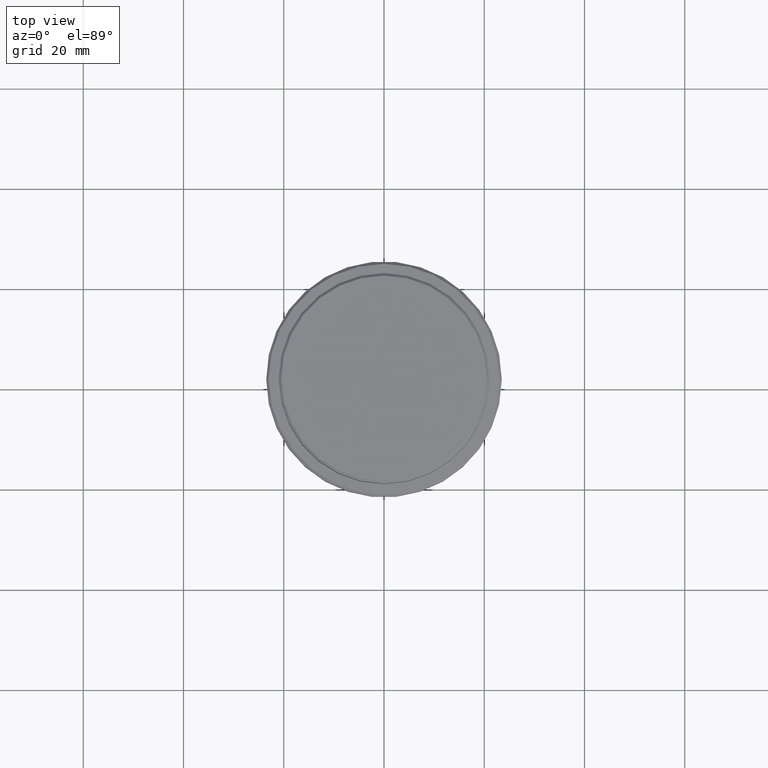
[diagram: clean part render]
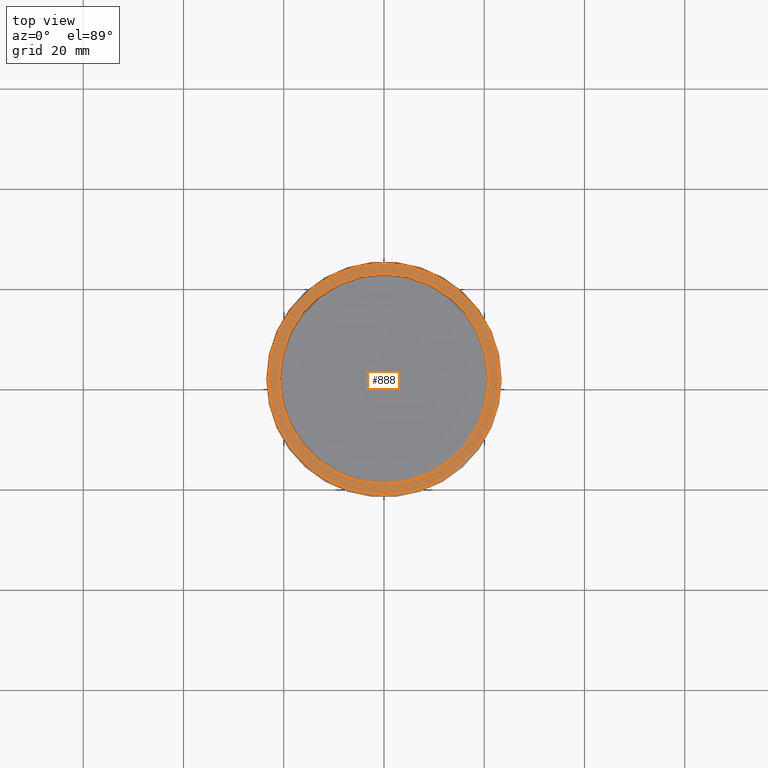
[diagram: same view with one face highlighted and labeled with its STEP entity id]
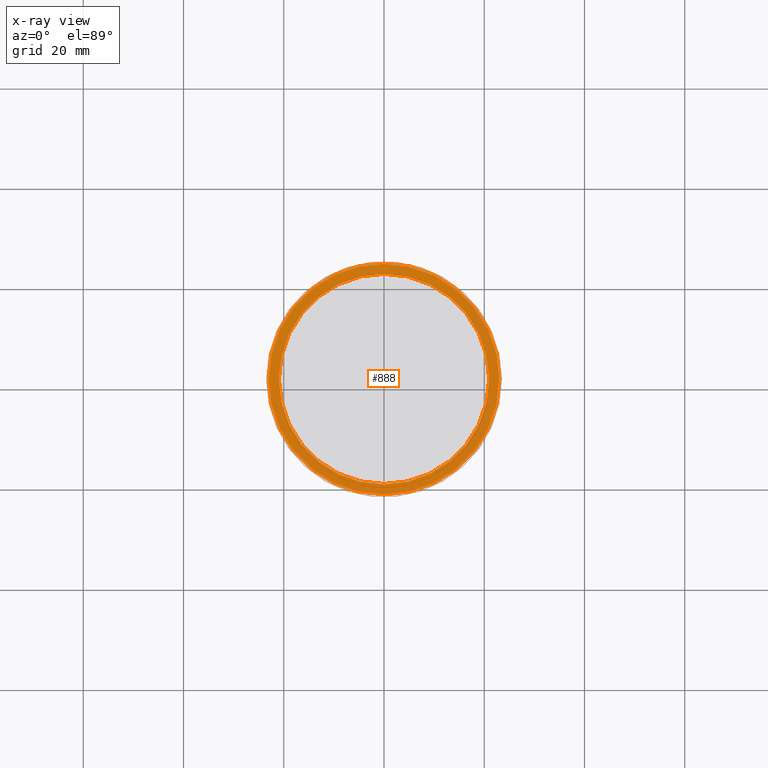
[diagram: x-ray of the same camera — body ghosted, the highlighted face saturated]
A machine part, top view. The second image highlights one B-rep face of the part: STEP entity #888.
The next image is the same camera in x-ray: the body ghosted, the highlighted face saturated — about 0% of this face is hidden behind the body in this view.
In plain terms, the highlighted planar face has unit normal (0, -0, 1).
Its self-contained STEP definition (entity closure, byte-faithful):
#24 = FACE_OUTER_BOUND ( 'NONE', #1284, .T. ) ;
#48 = VERTEX_POINT ( 'NONE', #637 ) ;
#64 = DIRECTION ( 'NONE',  ( 0.000000000000000000, 0.000000000000000000, -1.000000000000000000 ) ) ;
#76 = DIRECTION ( 'NONE',  ( 1.000000000000000000, 0.000000000000000000, 0.000000000000000000 ) ) ;
#112 = CARTESIAN_POINT ( 'NONE',  ( 20.99999999999999289, 0.000000000000000000, -9.000000000000001776 ) ) ;
#142 = PLANE ( 'NONE',  #298 ) ;
#163 = ORIENTED_EDGE ( 'NONE', *, *, #831, .T. ) ;
#165 = CARTESIAN_POINT ( 'NONE',  ( 0.000000000000000000, 0.000000000000000000, -9.000000000000001776 ) ) ;
#216 = DIRECTION ( 'NONE',  ( 1.000000000000000000, 0.000000000000000000, 0.000000000000000000 ) ) ;
#218 = CARTESIAN_POINT ( 'NONE',  ( 0.000000000000000000, 0.000000000000000000, -9.000000000000001776 ) ) ;
#271 = EDGE_CURVE ( 'NONE', #670, #830, #501, .T. ) ;
#298 = AXIS2_PLACEMENT_3D ( 'NONE', #461, #1348, #360 ) ;
#319 = CIRCLE ( 'NONE', #1118, 23.00000000000001066 ) ;
#360 = DIRECTION ( 'NONE',  ( 1.000000000000000000, 0.000000000000000000, 0.000000000000000000 ) ) ;
#376 = ORIENTED_EDGE ( 'NONE', *, *, #464, .T. ) ;
#395 = CARTESIAN_POINT ( 'NONE',  ( 0.000000000000000000, 0.000000000000000000, -9.000000000000001776 ) ) ;
#412 = DIRECTION ( 'NONE',  ( 0.000000000000000000, 0.000000000000000000, -1.000000000000000000 ) ) ;
#461 = CARTESIAN_POINT ( 'NONE',  ( 0.000000000000000000, 20.49999999999999645, -9.000000000000001776 ) ) ;
#464 = EDGE_CURVE ( 'NONE', #830, #670, #1139, .T. ) ;
#477 = EDGE_LOOP ( 'NONE', ( #1094, #376 ) ) ;
#501 = CIRCLE ( 'NONE', #617, 20.99999999999999289 ) ;
#504 = CIRCLE ( 'NONE', #752, 23.00000000000001066 ) ;
#542 = DIRECTION ( 'NONE',  ( 1.000000000000000000, 0.000000000000000000, 0.000000000000000000 ) ) ;
#562 = ORIENTED_EDGE ( 'NONE', *, *, #657, .T. ) ;
#583 = DIRECTION ( 'NONE',  ( 1.000000000000000000, 0.000000000000000000, 0.000000000000000000 ) ) ;
#617 = AXIS2_PLACEMENT_3D ( 'NONE', #395, #64, #76 ) ;
#637 = CARTESIAN_POINT ( 'NONE',  ( 23.00000000000001066, 2.847303808017596928E-15, -9.000000000000001776 ) ) ;
#657 = EDGE_CURVE ( 'NONE', #48, #681, #319, .T. ) ;
#670 = VERTEX_POINT ( 'NONE', #112 ) ;
#673 = FACE_BOUND ( 'NONE', #477, .T. ) ;
#681 = VERTEX_POINT ( 'NONE', #1058 ) ;
#752 = AXIS2_PLACEMENT_3D ( 'NONE', #218, #754, #542 ) ;
#754 = DIRECTION ( 'NONE',  ( -0.000000000000000000, -0.000000000000000000, 1.000000000000000000 ) ) ;
#808 = DIRECTION ( 'NONE',  ( -0.000000000000000000, -0.000000000000000000, 1.000000000000000000 ) ) ;
#830 = VERTEX_POINT ( 'NONE', #1150 ) ;
#831 = EDGE_CURVE ( 'NONE', #681, #48, #504, .T. ) ;
#888 = ADVANCED_FACE ( 'NONE', ( #24, #673 ), #142, .T. ) ;
#956 = CARTESIAN_POINT ( 'NONE',  ( 0.000000000000000000, 0.000000000000000000, -9.000000000000001776 ) ) ;
#1058 = CARTESIAN_POINT ( 'NONE',  ( -23.00000000000001066, 0.000000000000000000, -9.000000000000001776 ) ) ;
#1094 = ORIENTED_EDGE ( 'NONE', *, *, #271, .T. ) ;
#1118 = AXIS2_PLACEMENT_3D ( 'NONE', #165, #808, #583 ) ;
#1139 = CIRCLE ( 'NONE', #1328, 20.99999999999999289 ) ;
#1150 = CARTESIAN_POINT ( 'NONE',  ( -20.99999999999999289, 2.571758278209440872E-15, -9.000000000000001776 ) ) ;
#1284 = EDGE_LOOP ( 'NONE', ( #163, #562 ) ) ;
#1328 = AXIS2_PLACEMENT_3D ( 'NONE', #956, #412, #216 ) ;
#1348 = DIRECTION ( 'NONE',  ( 0.000000000000000000, -0.000000000000000000, 1.000000000000000000 ) ) ;